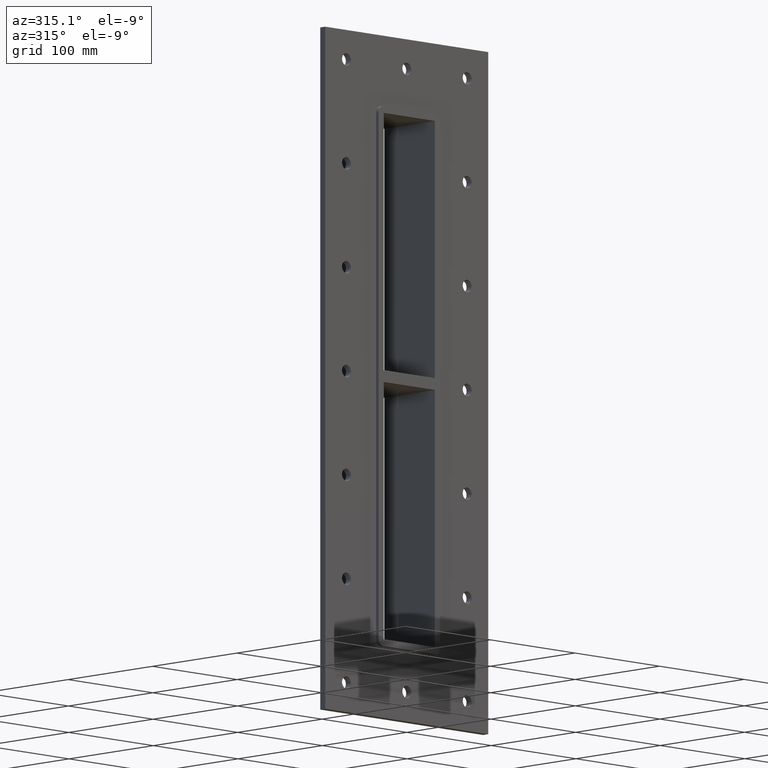
[diagram: clean part render]
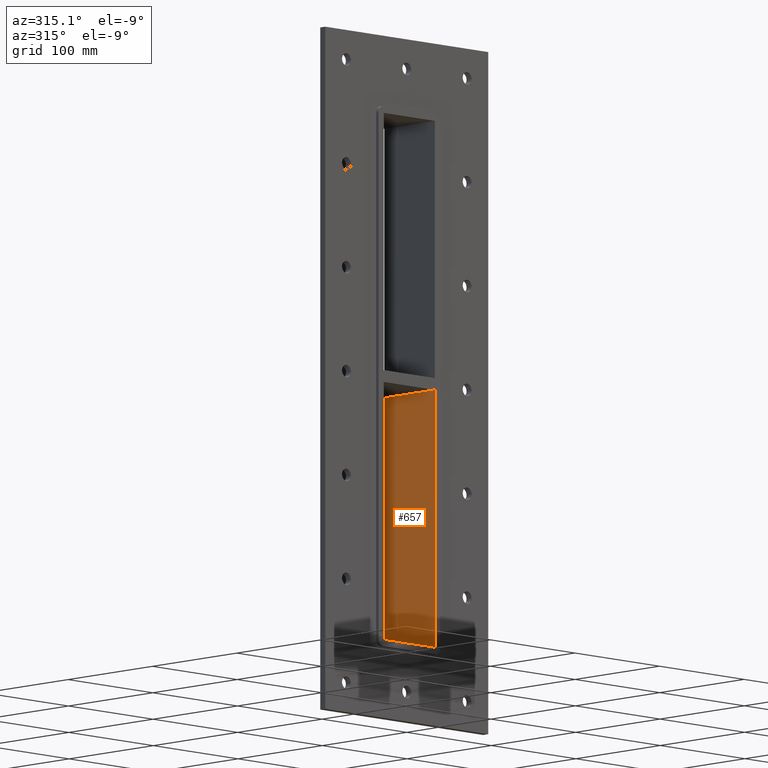
[diagram: same view with one face highlighted and labeled with its STEP entity id]
A machine part, auxiliary view. The second image highlights one B-rep face of the part: STEP entity #657.
In plain terms, the highlighted planar face has unit normal (1, 0, 0).
Its self-contained STEP definition (entity closure, byte-faithful):
#521=CARTESIAN_POINT('',(30.249999999996362,-3.0,-5.000000000011404));
#522=VERTEX_POINT('',#521);
#539=CARTESIAN_POINT('',(30.249999999996366,57.0,-5.000000000011404));
#540=VERTEX_POINT('',#539);
#547=CARTESIAN_POINT('',(30.25,-3.0,-5.000000000011404));
#548=DIRECTION('',(0.0,1.0,0.0));
#549=VECTOR('',#548,60.000000000000007);
#550=LINE('',#547,#549);
#551=EDGE_CURVE('',#522,#540,#550,.T.);
#627=CARTESIAN_POINT('',(30.25,0.0,223.00000000000006));
#628=DIRECTION('',(1.0,0.0,0.0));
#629=DIRECTION('',(0.0,0.0,-1.0));
#630=AXIS2_PLACEMENT_3D('',#627,#628,#629);
#631=PLANE('',#630);
#632=ORIENTED_EDGE('',*,*,#551,.T.);
#633=CARTESIAN_POINT('',(30.25,57.0,-223.00000000000006));
#634=VERTEX_POINT('',#633);
#635=CARTESIAN_POINT('',(30.25,57.0,-222.99999999999997));
#636=DIRECTION('',(0.0,0.0,1.0));
#637=VECTOR('',#636,217.99999999998857);
#638=LINE('',#635,#637);
#639=EDGE_CURVE('',#634,#540,#638,.T.);
#640=ORIENTED_EDGE('',*,*,#639,.F.);
#641=CARTESIAN_POINT('',(30.25,-3.0,-223.00000000000006));
#642=VERTEX_POINT('',#641);
#643=CARTESIAN_POINT('',(30.25,56.999999999999993,-223.00000000000006));
#644=DIRECTION('',(0.0,-1.0,0.0));
#645=VECTOR('',#644,59.999999999999993);
#646=LINE('',#643,#645);
#647=EDGE_CURVE('',#634,#642,#646,.T.);
#648=ORIENTED_EDGE('',*,*,#647,.T.);
#649=CARTESIAN_POINT('',(30.25,-3.0,-5.000000000011397));
#650=DIRECTION('',(0.0,0.0,-1.0));
#651=VECTOR('',#650,217.99999999998857);
#652=LINE('',#649,#651);
#653=EDGE_CURVE('',#522,#642,#652,.T.);
#654=ORIENTED_EDGE('',*,*,#653,.F.);
#655=EDGE_LOOP('',(#632,#640,#648,#654));
#656=FACE_OUTER_BOUND('',#655,.T.);
#657=ADVANCED_FACE('',(#656),#631,.F.);